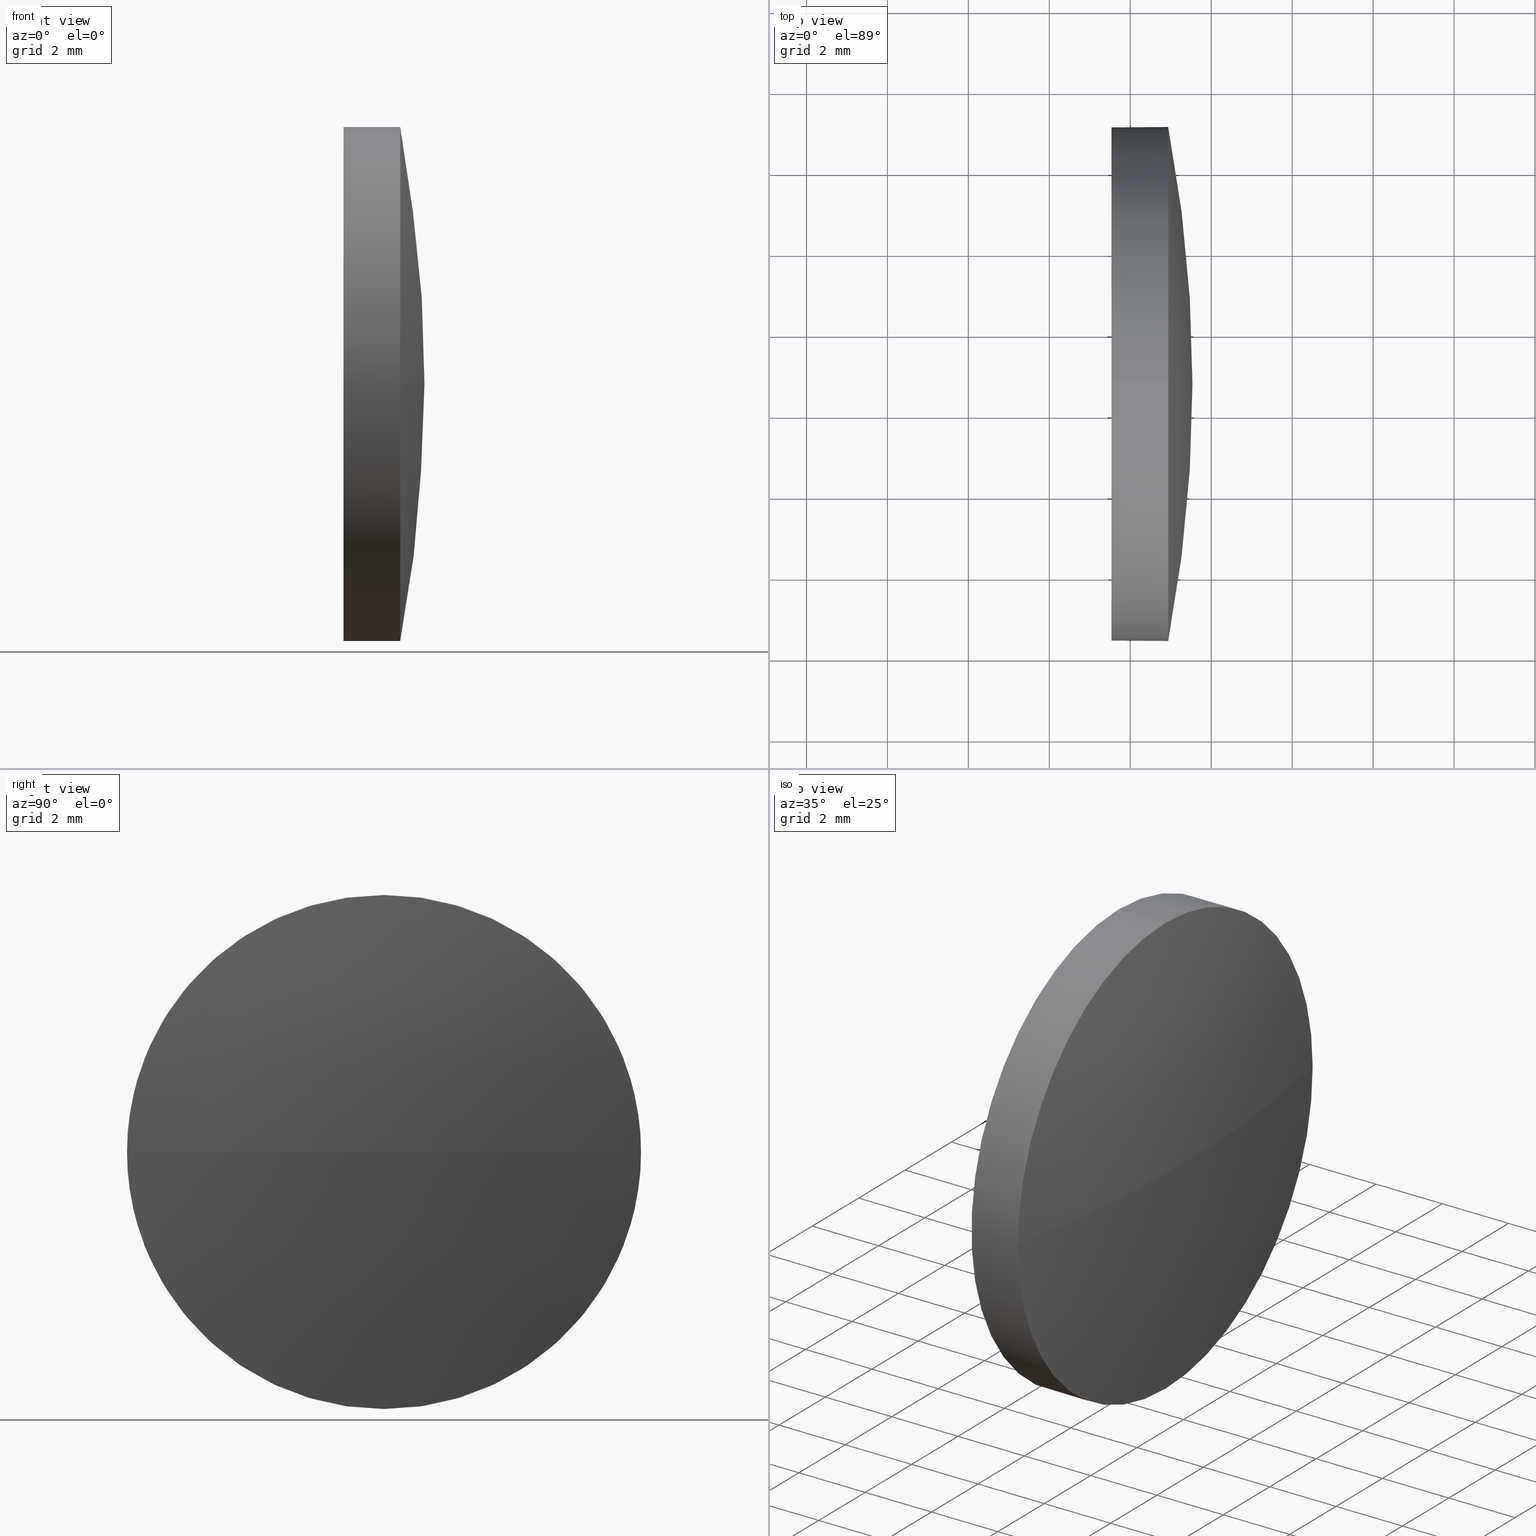
[diagram: canonical four-view strip — front | top / right | iso, engineering-drawing reading convention]
A machine part, canonical four-view strip (front | top / right | iso — engineering-drawing reading convention). The complete STEP part file that produces these views, byte-faithful:
ISO-10303-21;
HEADER;
FILE_DESCRIPTION (( 'STEP AP214' ),
    '1' );
FILE_NAME ('100468.STEP',
    '2019-06-11T02:31:15',
    ( '' ),
    ( '' ),
    'SwSTEP 2.0',
    'SolidWorks 2016',
    '' );
FILE_SCHEMA (( 'AUTOMOTIVE_DESIGN' ));
ENDSEC;

DATA;
#1 = VERTEX_POINT ( 'NONE', #58 ) ;
#2 = PRODUCT ( '100468', '100468', '', ( #143 ) ) ;
#3 = MANIFOLD_SOLID_BREP ( '��ת1', #169 ) ;
#4 = COLOUR_RGB ( '',1.000000000000000000, 1.000000000000000000, 1.000000000000000000 ) ;
#5 = AXIS2_PLACEMENT_3D ( 'NONE', #174, #82, #184 ) ;
#6 = ORIENTED_EDGE ( 'NONE', *, *, #122, .F. ) ;
#7 = ADVANCED_FACE ( 'NONE', ( #64 ), #113, .T. ) ;
#8 = EDGE_CURVE ( 'NONE', #84, #160, #141, .T. ) ;
#9 = ORIENTED_EDGE ( 'NONE', *, *, #105, .T. ) ;
#10 = ORIENTED_EDGE ( 'NONE', *, *, #98, .T. ) ;
#11 = DIRECTION ( 'NONE',  ( -1.000000000000000000, -0.0000000000000000000, -0.0000000000000000000 ) ) ;
#12 = CARTESIAN_POINT ( 'NONE',  ( 196.9368600580019700, 18.73237217798914900, -6.350000000000001400 ) ) ;
#13 = CARTESIAN_POINT ( 'NONE',  ( 163.6347767246686500, 18.73237217798910600, 0.0000000000000000000 ) ) ;
#14 = DIRECTION ( 'NONE',  ( 0.0000000000000000000, 0.0000000000000000000, 1.000000000000000000 ) ) ;
#15 = PRODUCT_DEFINITION ( 'δ֪', '', #34, #109 ) ;
#16 = SHAPE_DEFINITION_REPRESENTATION ( #45, #137 ) ;
#17 = ORIENTED_EDGE ( 'NONE', *, *, #8, .F. ) ;
#18 = DIRECTION ( 'NONE',  ( 0.0000000000000000000, 0.0000000000000000000, 1.000000000000000000 ) ) ;
#19 =( LENGTH_UNIT ( ) NAMED_UNIT ( * ) SI_UNIT ( .MILLI., .METRE. ) );
#20 = CIRCLE ( 'NONE', #50, 6.350000000000001400 ) ;
#21 = ADVANCED_FACE ( 'NONE', ( #101 ), #139, .F. ) ;
#22 = EDGE_LOOP ( 'NONE', ( #186, #116, #6, #71 ) ) ;
#23 = AXIS2_PLACEMENT_3D ( 'NONE', #46, #97, #61 ) ;
#24 = DIRECTION ( 'NONE',  ( -0.0000000000000000000, 0.0000000000000000000, -1.000000000000000000 ) ) ;
#25 = DIRECTION ( 'NONE',  ( 0.0000000000000000000, 0.0000000000000000000, 1.000000000000000000 ) ) ;
#26 = ORIENTED_EDGE ( 'NONE', *, *, #179, .F. ) ;
#27 = CARTESIAN_POINT ( 'NONE',  ( 163.6347767246686500, 18.73237217798910600, 0.0000000000000000000 ) ) ;
#28 =( GEOMETRIC_REPRESENTATION_CONTEXT ( 3 ) GLOBAL_UNCERTAINTY_ASSIGNED_CONTEXT ( ( #73 ) ) GLOBAL_UNIT_ASSIGNED_CONTEXT ( ( #118, #93, #92 ) ) REPRESENTATION_CONTEXT ( 'NONE', 'WORKASPACE' ) );
#29 = DIRECTION ( 'NONE',  ( 0.0000000000000000000, 1.000000000000000000, 0.0000000000000000000 ) ) ;
#30 = CARTESIAN_POINT ( 'NONE',  ( 196.9368600580019700, 12.38237217798907800, -7.776507174585727700E-016 ) ) ;
#31 = CIRCLE ( 'NONE', #158, 6.350000000000001400 ) ;
#32 = APPLICATION_CONTEXT ( 'automotive_design' ) ;
#33 = EDGE_LOOP ( 'NONE', ( #9, #89 ) ) ;
#34 = PRODUCT_DEFINITION_FORMATION_WITH_SPECIFIED_SOURCE ( '�κ�', '', #2, .NOT_KNOWN. ) ;
#35 = LINE ( 'NONE', #39, #68 ) ;
#36 = CIRCLE ( 'NONE', #23, 6.350000000000001400 ) ;
#37 = AXIS2_PLACEMENT_3D ( 'NONE', #13, #157, #29 ) ;
#38 = ORIENTED_EDGE ( 'NONE', *, *, #105, .F. ) ;
#39 = CARTESIAN_POINT ( 'NONE',  ( 192.6677510401637500, 18.73237217798914900, 6.350000000000001400 ) ) ;
#40 = EDGE_CURVE ( 'NONE', #1, #59, #35, .T. ) ;
#41 = CYLINDRICAL_SURFACE ( 'NONE', #5, 6.350000000000001400 ) ;
#42 = CARTESIAN_POINT ( 'NONE',  ( 192.6677510401637500, 18.73237217798914900, -6.350000000000001400 ) ) ;
#43 = PRESENTATION_STYLE_ASSIGNMENT (( #171 ) ) ;
#44 = DIRECTION ( 'NONE',  ( -1.000000000000000000, -0.0000000000000000000, -0.0000000000000000000 ) ) ;
#45 = PRODUCT_DEFINITION_SHAPE ( 'NONE', 'NONE',  #15 ) ;
#46 = CARTESIAN_POINT ( 'NONE',  ( 196.9368600580019700, 18.73237217798914900, 0.0000000000000000000 ) ) ;
#47 = FILL_AREA_STYLE_COLOUR ( '', #80 ) ;
#48 = CIRCLE ( 'NONE', #66, 33.90208333333330200 ) ;
#49 = ORIENTED_EDGE ( 'NONE', *, *, #40, .F. ) ;
#50 = AXIS2_PLACEMENT_3D ( 'NONE', #60, #95, #14 ) ;
#51 = EDGE_LOOP ( 'NONE', ( #10, #152, #38, #49, #54 ) ) ;
#52 = EDGE_CURVE ( 'NONE', #160, #59, #31, .T. ) ;
#53 = EDGE_LOOP ( 'NONE', ( #78, #149, #26, #104 ) ) ;
#54 = ORIENTED_EDGE ( 'NONE', *, *, #179, .T. ) ;
#55 = CARTESIAN_POINT ( 'NONE',  ( 195.5368600580019300, 18.73237217798914900, 6.350000000000001400 ) ) ;
#56 = SPHERICAL_SURFACE ( 'NONE', #37, 33.90208333333330200 ) ;
#57 = EDGE_LOOP ( 'NONE', ( #17, #183, #119, #110, #103 ) ) ;
#58 = CARTESIAN_POINT ( 'NONE',  ( 196.9368600580019700, 18.73237217798914900, 6.350000000000001400 ) ) ;
#59 = VERTEX_POINT ( 'NONE', #55 ) ;
#60 = CARTESIAN_POINT ( 'NONE',  ( 196.9368600580019700, 18.73237217798914900, 0.0000000000000000000 ) ) ;
#61 = DIRECTION ( 'NONE',  ( 0.0000000000000000000, 0.0000000000000000000, 1.000000000000000000 ) ) ;
#62 = EDGE_CURVE ( 'NONE', #87, #1, #75, .T. ) ;
#63 = APPLICATION_PROTOCOL_DEFINITION ( 'draft international standard', 'automotive_design', 1998, #32 ) ;
#64 = FACE_OUTER_BOUND ( 'NONE', #22, .T. ) ;
#65 = ADVANCED_FACE ( 'NONE', ( #133 ), #41, .T. ) ;
#66 = AXIS2_PLACEMENT_3D ( 'NONE', #27, #185, #106 ) ;
#67 = CARTESIAN_POINT ( 'NONE',  ( 195.5368600580019300, 18.73237217798914900, 0.0000000000000000000 ) ) ;
#68 = VECTOR ( 'NONE', #11, 1000.000000000000000 ) ;
#69 = PRESENTATION_LAYER_ASSIGNMENT (  '', '', ( #147 ) ) ;
#70 = PRESENTATION_STYLE_ASSIGNMENT (( #130 ) ) ;
#71 = ORIENTED_EDGE ( 'NONE', *, *, #98, .F. ) ;
#72 = DIRECTION ( 'NONE',  ( 0.0000000000000000000, 0.0000000000000000000, 1.000000000000000000 ) ) ;
#73 = UNCERTAINTY_MEASURE_WITH_UNIT (LENGTH_MEASURE( 1.000000000000000100E-005 ), #118, 'distance_accuracy_value', 'NONE');
#74 = DIRECTION ( 'NONE',  ( 0.0000000000000000000, 0.0000000000000000000, 1.000000000000000000 ) ) ;
#75 = CIRCLE ( 'NONE', #100, 6.350000000000001400 ) ;
#76 =( NAMED_UNIT ( * ) PLANE_ANGLE_UNIT ( ) SI_UNIT ( $, .RADIAN. ) );
#77 =( GEOMETRIC_REPRESENTATION_CONTEXT ( 3 ) GLOBAL_UNCERTAINTY_ASSIGNED_CONTEXT ( ( #167 ) ) GLOBAL_UNIT_ASSIGNED_CONTEXT ( ( #127, #76, #96 ) ) REPRESENTATION_CONTEXT ( 'NONE', 'WORKASPACE' ) );
#78 = ORIENTED_EDGE ( 'NONE', *, *, #136, .F. ) ;
#79 = AXIS2_PLACEMENT_3D ( 'NONE', #111, #163, #86 ) ;
#80 = COLOUR_RGB ( '',1.000000000000000000, 1.000000000000000000, 1.000000000000000000 ) ;
#81 = DIRECTION ( 'NONE',  ( 0.0000000000000000000, 0.0000000000000000000, -1.000000000000000000 ) ) ;
#82 = DIRECTION ( 'NONE',  ( -1.000000000000000000, -0.0000000000000000000, -0.0000000000000000000 ) ) ;
#83 = PRESENTATION_LAYER_ASSIGNMENT (  '', '', ( #145 ) ) ;
#84 = VERTEX_POINT ( 'NONE', #12 ) ;
#85 = DIRECTION ( 'NONE',  ( -1.000000000000000000, -0.0000000000000000000, -0.0000000000000000000 ) ) ;
#86 = DIRECTION ( 'NONE',  ( 0.0000000000000000000, 1.000000000000000000, 1.224646799147353200E-016 ) ) ;
#87 = VERTEX_POINT ( 'NONE', #30 ) ;
#88 = APPLICATION_CONTEXT ( 'automotive_design' ) ;
#89 = ORIENTED_EDGE ( 'NONE', *, *, #52, .T. ) ;
#90 = CIRCLE ( 'NONE', #79, 33.90208333333330200 ) ;
#91 =( GEOMETRIC_REPRESENTATION_CONTEXT ( 3 ) GLOBAL_UNCERTAINTY_ASSIGNED_CONTEXT ( ( #117 ) ) GLOBAL_UNIT_ASSIGNED_CONTEXT ( ( #19, #177, #114 ) ) REPRESENTATION_CONTEXT ( 'NONE', 'WORKASPACE' ) );
#92 =( NAMED_UNIT ( * ) SI_UNIT ( $, .STERADIAN. ) SOLID_ANGLE_UNIT ( ) );
#93 =( NAMED_UNIT ( * ) PLANE_ANGLE_UNIT ( ) SI_UNIT ( $, .RADIAN. ) );
#94 = SURFACE_STYLE_FILL_AREA ( #138 ) ;
#95 = DIRECTION ( 'NONE',  ( -1.000000000000000000, -0.0000000000000000000, -0.0000000000000000000 ) ) ;
#96 =( NAMED_UNIT ( * ) SI_UNIT ( $, .STERADIAN. ) SOLID_ANGLE_UNIT ( ) );
#97 = DIRECTION ( 'NONE',  ( -1.000000000000000000, -0.0000000000000000000, -0.0000000000000000000 ) ) ;
#98 = EDGE_CURVE ( 'NONE', #124, #84, #150, .T. ) ;
#99 = CARTESIAN_POINT ( 'NONE',  ( 197.5368600580019600, 18.73237217798910900, 0.0000000000000000000 ) ) ;
#100 = AXIS2_PLACEMENT_3D ( 'NONE', #108, #121, #74 ) ;
#101 = FACE_OUTER_BOUND ( 'NONE', #33, .T. ) ;
#102 = ADVANCED_FACE ( 'NONE', ( #164 ), #56, .T. ) ;
#103 = ORIENTED_EDGE ( 'NONE', *, *, #52, .F. ) ;
#104 = ORIENTED_EDGE ( 'NONE', *, *, #62, .F. ) ;
#105 = EDGE_CURVE ( 'NONE', #59, #160, #170, .T. ) ;
#106 = DIRECTION ( 'NONE',  ( 1.000000000000000000, 0.0000000000000000000, 0.0000000000000000000 ) ) ;
#107 = CARTESIAN_POINT ( 'NONE',  ( 192.6677510401637500, 18.73237217798914900, 0.0000000000000000000 ) ) ;
#108 = CARTESIAN_POINT ( 'NONE',  ( 196.9368600580019700, 18.73237217798914900, 0.0000000000000000000 ) ) ;
#109 = PRODUCT_DEFINITION_CONTEXT ( 'detailed design', #32, 'design' ) ;
#110 = ORIENTED_EDGE ( 'NONE', *, *, #40, .T. ) ;
#111 = CARTESIAN_POINT ( 'NONE',  ( 163.6347767246686500, 18.73237217798910600, 0.0000000000000000000 ) ) ;
#112 = CARTESIAN_POINT ( 'NONE',  ( 0.0000000000000000000, 0.0000000000000000000, 0.0000000000000000000 ) ) ;
#113 = SPHERICAL_SURFACE ( 'NONE', #168, 33.90208333333330200 ) ;
#114 =( NAMED_UNIT ( * ) SI_UNIT ( $, .STERADIAN. ) SOLID_ANGLE_UNIT ( ) );
#115 = AXIS2_PLACEMENT_3D ( 'NONE', #112, #18, #132 ) ;
#116 = ORIENTED_EDGE ( 'NONE', *, *, #136, .T. ) ;
#117 = UNCERTAINTY_MEASURE_WITH_UNIT (LENGTH_MEASURE( 1.000000000000000100E-005 ), #19, 'distance_accuracy_value', 'NONE');
#118 =( LENGTH_UNIT ( ) NAMED_UNIT ( * ) SI_UNIT ( .MILLI., .METRE. ) );
#119 = ORIENTED_EDGE ( 'NONE', *, *, #62, .T. ) ;
#120 = DIRECTION ( 'NONE',  ( 0.0000000000000000000, 1.000000000000000000, 0.0000000000000000000 ) ) ;
#121 = DIRECTION ( 'NONE',  ( -1.000000000000000000, -0.0000000000000000000, -0.0000000000000000000 ) ) ;
#122 = EDGE_CURVE ( 'NONE', #84, #87, #20, .T. ) ;
#123 = DIRECTION ( 'NONE',  ( -1.000000000000000000, -0.0000000000000000000, -0.0000000000000000000 ) ) ;
#124 = VERTEX_POINT ( 'NONE', #125 ) ;
#125 = CARTESIAN_POINT ( 'NONE',  ( 196.9368600580019700, 25.08237217798917800, 0.0000000000000000000 ) ) ;
#126 = CARTESIAN_POINT ( 'NONE',  ( 195.5368600580019300, 18.73237217798914900, -6.350000000000001400 ) ) ;
#127 =( LENGTH_UNIT ( ) NAMED_UNIT ( * ) SI_UNIT ( .MILLI., .METRE. ) );
#128 = PRODUCT_RELATED_PRODUCT_CATEGORY ( 'part', '', ( #2 ) ) ;
#129 = FACE_OUTER_BOUND ( 'NONE', #57, .T. ) ;
#130 = SURFACE_STYLE_USAGE ( .BOTH. , #131 ) ;
#131 = SURFACE_SIDE_STYLE ('',( #166 ) ) ;
#132 = DIRECTION ( 'NONE',  ( 1.000000000000000000, 0.0000000000000000000, 0.0000000000000000000 ) ) ;
#133 = FACE_OUTER_BOUND ( 'NONE', #51, .T. ) ;
#134 = AXIS2_PLACEMENT_3D ( 'NONE', #176, #123, #140 ) ;
#135 = MECHANICAL_DESIGN_GEOMETRIC_PRESENTATION_REPRESENTATION (  '', ( #147 ), #28 ) ;
#136 = EDGE_CURVE ( 'NONE', #155, #87, #90, .T. ) ;
#137 = ADVANCED_BREP_SHAPE_REPRESENTATION ( '100468', ( #3, #115 ), #77 ) ;
#138 = FILL_AREA_STYLE ('',( #182 ) ) ;
#139 = PLANE ( 'NONE',  #154 ) ;
#140 = DIRECTION ( 'NONE',  ( 0.0000000000000000000, 0.0000000000000000000, 1.000000000000000000 ) ) ;
#141 = LINE ( 'NONE', #42, #178 ) ;
#142 = CARTESIAN_POINT ( 'NONE',  ( 195.5368600580019300, 18.73237217798914900, 0.0000000000000000000 ) ) ;
#143 = PRODUCT_CONTEXT ( 'NONE', #88, 'mechanical' ) ;
#144 = FILL_AREA_STYLE ('',( #47 ) ) ;
#145 = STYLED_ITEM ( 'NONE', ( #70 ), #137 ) ;
#146 = CYLINDRICAL_SURFACE ( 'NONE', #165, 6.350000000000001400 ) ;
#147 = STYLED_ITEM ( 'NONE', ( #43 ), #3 ) ;
#148 = APPLICATION_PROTOCOL_DEFINITION ( 'draft international standard', 'automotive_design', 1998, #88 ) ;
#149 = ORIENTED_EDGE ( 'NONE', *, *, #172, .T. ) ;
#150 = CIRCLE ( 'NONE', #134, 6.350000000000001400 ) ;
#151 = AXIS2_PLACEMENT_3D ( 'NONE', #142, #85, #25 ) ;
#152 = ORIENTED_EDGE ( 'NONE', *, *, #8, .T. ) ;
#153 = SURFACE_SIDE_STYLE ('',( #94 ) ) ;
#154 = AXIS2_PLACEMENT_3D ( 'NONE', #67, #156, #81 ) ;
#155 = VERTEX_POINT ( 'NONE', #99 ) ;
#156 = DIRECTION ( 'NONE',  ( 1.000000000000000000, 0.0000000000000000000, 0.0000000000000000000 ) ) ;
#157 = DIRECTION ( 'NONE',  ( -0.0000000000000000000, 0.0000000000000000000, -1.000000000000000000 ) ) ;
#158 = AXIS2_PLACEMENT_3D ( 'NONE', #162, #175, #72 ) ;
#159 = DIRECTION ( 'NONE',  ( -1.000000000000000000, -0.0000000000000000000, -0.0000000000000000000 ) ) ;
#160 = VERTEX_POINT ( 'NONE', #126 ) ;
#161 = DIRECTION ( 'NONE',  ( 0.0000000000000000000, 0.0000000000000000000, 1.000000000000000000 ) ) ;
#162 = CARTESIAN_POINT ( 'NONE',  ( 195.5368600580019300, 18.73237217798914900, 0.0000000000000000000 ) ) ;
#163 = DIRECTION ( 'NONE',  ( 0.0000000000000000000, 1.224646799147353200E-016, -1.000000000000000000 ) ) ;
#164 = FACE_OUTER_BOUND ( 'NONE', #53, .T. ) ;
#165 = AXIS2_PLACEMENT_3D ( 'NONE', #107, #159, #161 ) ;
#166 = SURFACE_STYLE_FILL_AREA ( #144 ) ;
#167 = UNCERTAINTY_MEASURE_WITH_UNIT (LENGTH_MEASURE( 1.000000000000000100E-005 ), #127, 'distance_accuracy_value', 'NONE');
#168 = AXIS2_PLACEMENT_3D ( 'NONE', #173, #24, #120 ) ;
#169 = CLOSED_SHELL ( 'NONE', ( #65, #7, #102, #180, #21 ) ) ;
#170 = CIRCLE ( 'NONE', #151, 6.350000000000001400 ) ;
#171 = SURFACE_STYLE_USAGE ( .BOTH. , #153 ) ;
#172 = EDGE_CURVE ( 'NONE', #155, #124, #48, .T. ) ;
#173 = CARTESIAN_POINT ( 'NONE',  ( 163.6347767246686500, 18.73237217798910600, 0.0000000000000000000 ) ) ;
#174 = CARTESIAN_POINT ( 'NONE',  ( 192.6677510401637500, 18.73237217798914900, 0.0000000000000000000 ) ) ;
#175 = DIRECTION ( 'NONE',  ( -1.000000000000000000, -0.0000000000000000000, -0.0000000000000000000 ) ) ;
#176 = CARTESIAN_POINT ( 'NONE',  ( 196.9368600580019700, 18.73237217798914900, 0.0000000000000000000 ) ) ;
#177 =( NAMED_UNIT ( * ) PLANE_ANGLE_UNIT ( ) SI_UNIT ( $, .RADIAN. ) );
#178 = VECTOR ( 'NONE', #44, 1000.000000000000000 ) ;
#179 = EDGE_CURVE ( 'NONE', #1, #124, #36, .T. ) ;
#180 = ADVANCED_FACE ( 'NONE', ( #129 ), #146, .T. ) ;
#181 = MECHANICAL_DESIGN_GEOMETRIC_PRESENTATION_REPRESENTATION (  '', ( #145 ), #91 ) ;
#182 = FILL_AREA_STYLE_COLOUR ( '', #4 ) ;
#183 = ORIENTED_EDGE ( 'NONE', *, *, #122, .T. ) ;
#184 = DIRECTION ( 'NONE',  ( 0.0000000000000000000, 0.0000000000000000000, 1.000000000000000000 ) ) ;
#185 = DIRECTION ( 'NONE',  ( -0.0000000000000000000, 0.0000000000000000000, 1.000000000000000000 ) ) ;
#186 = ORIENTED_EDGE ( 'NONE', *, *, #172, .F. ) ;
ENDSEC;
END-ISO-10303-21;
